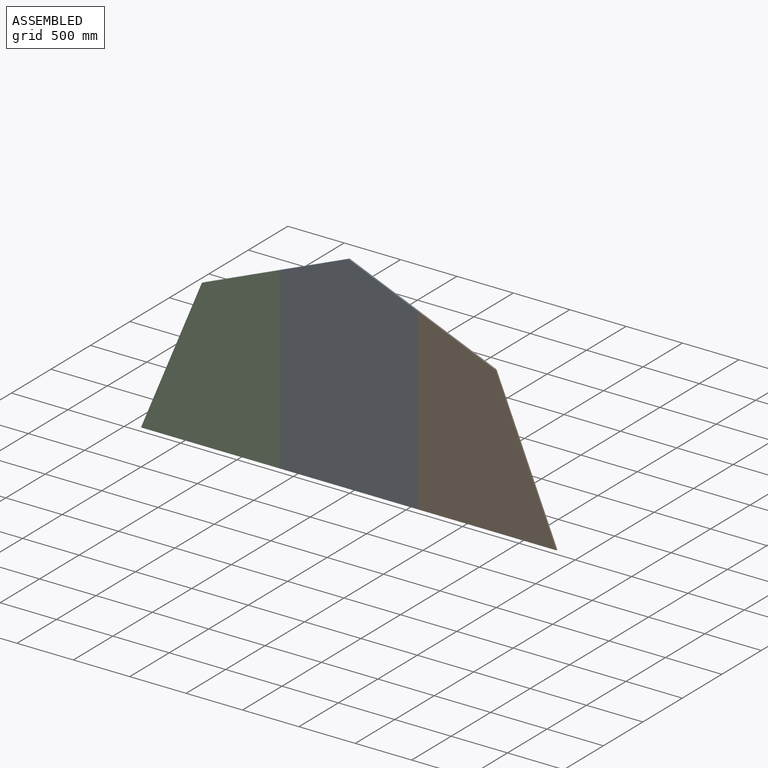
[diagram: assembled view]
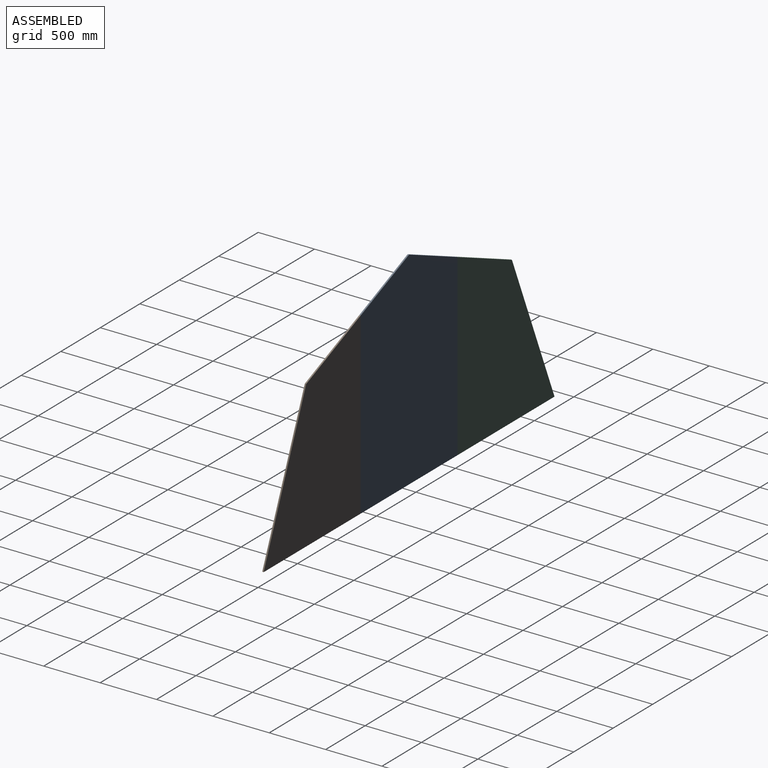
[diagram: assembled view, second angle]
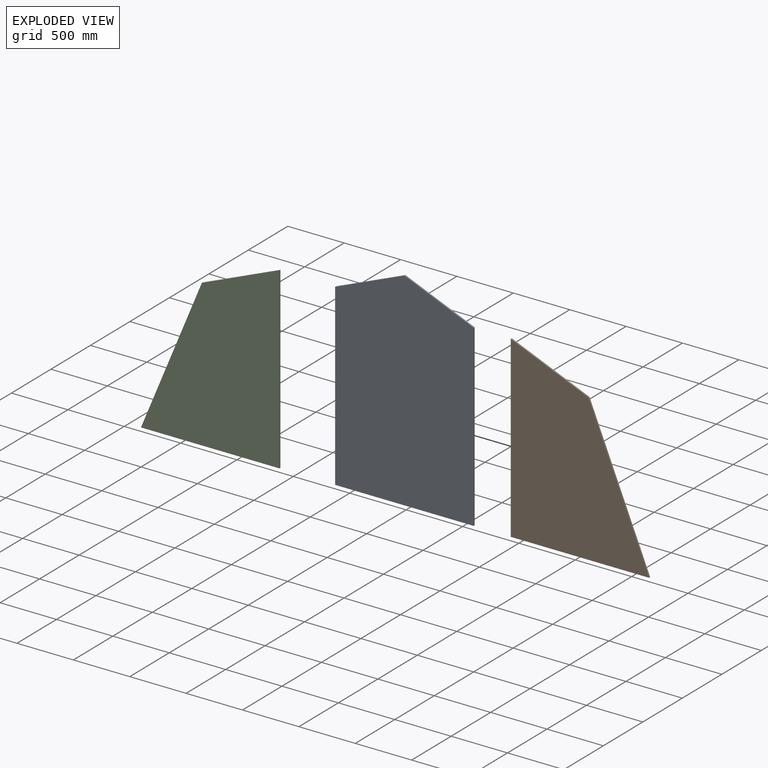
[diagram: exploded view]
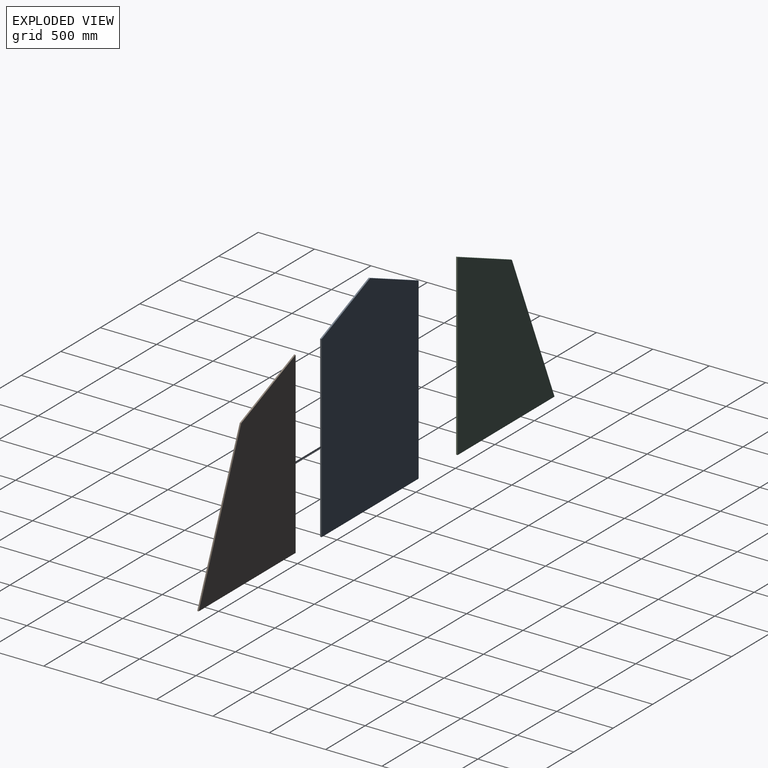
[diagram: exploded view, second angle]
ASSEMBLY  parts=3 mates=2
PART A: 7 faces, bbox 1228x12.7x1841.9 mm
  f0: plane 1228.05x12.7mm, normal (0,0,-1), area 15596.2mm2, adj f1,f4,f5,f6
  f1: plane 1587.53x12.7mm, normal (1,0,0), area 20161.6mm2, adj f0,f2,f5,f6
  f2: plane 614.02x254.34mm, normal (0.38,0,0.92), area 8440.6mm2, adj f1,f3,f5,f6
  f3: plane 614.02x254.34mm, normal (-0.38,0,0.92), area 8440.6mm2, adj f2,f4,f5,f6
  f4: plane 1587.53x12.7mm, normal (-1,0,0), area 20161.6mm2, adj f0,f3,f5,f6
  f5: plane 1841.86x1228.05mm, normal (0,-1,0), area 2105720.8mm2, adj f0,f1,f2,f3,f4
  f6: plane 1841.86x1228.05mm, normal (0,1,0), area 2105720.8mm2, adj f0,f1,f2,f3,f4
PART B: 6 faces, bbox 1227.8x12.7x1587.5 mm
  f0: plane 1227.84x12.7mm, normal (0,0,-1), area 15593.6mm2, adj f1,f3,f4,f5
  f1: plane 1587.53x12.7mm, normal (1,0,0), area 20161.6mm2, adj f0,f2,f4,f5
  f2: plane 688.37x285.13mm, normal (-0.38,0,0.92), area 9462.6mm2, adj f1,f3,f4,f5
  f3: plane 1302.39x539.47mm, normal (-0.92,0,0.38), area 17903.2mm2, adj f0,f2,f4,f5
  f4: plane 1587.53x1227.84mm, normal (0,-1,0), area 1345967.5mm2, adj f0,f1,f2,f3
  f5: plane 1587.53x1227.84mm, normal (0,1,0), area 1345967.5mm2, adj f0,f1,f2,f3
PART C: same geometry as B
PLACE A t=(32.29,-40.55,798.42)mm
PLACE B rot(axis=(0,0,1),180deg) t=(-446.59,-46.9,320.26)mm
PLACE C t=(-497.08,-46.9,320.26)mm
MATE fastened C.f1 <-> A.f4  axis (1,0,0) through (-1085.86,-53.25,-592.19)mm
MATE fastened B.f1 <-> A.f1  axis (-1,0,0) through (142.19,-53.25,-592.19)mm
